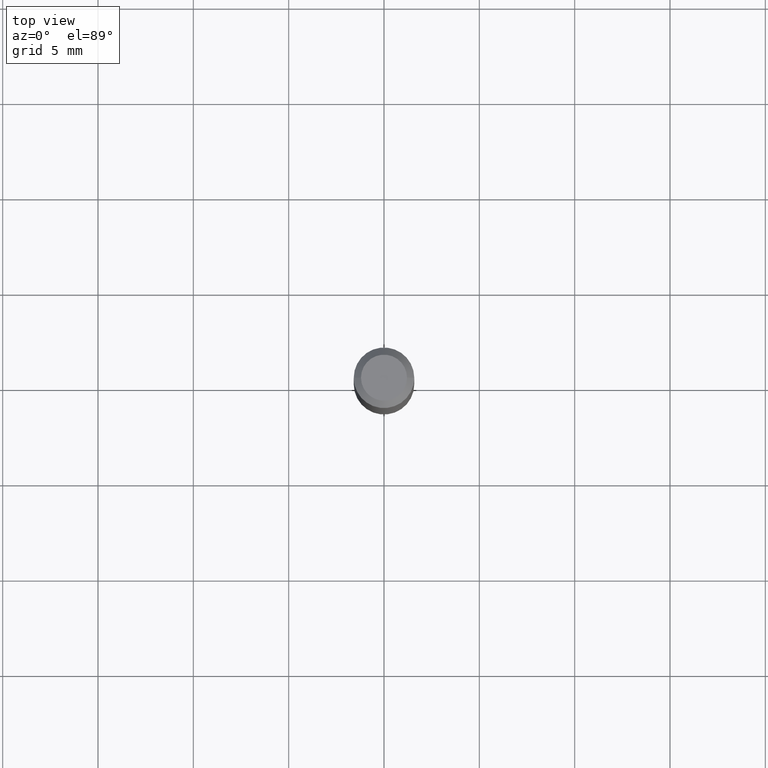
[diagram: clean part render]
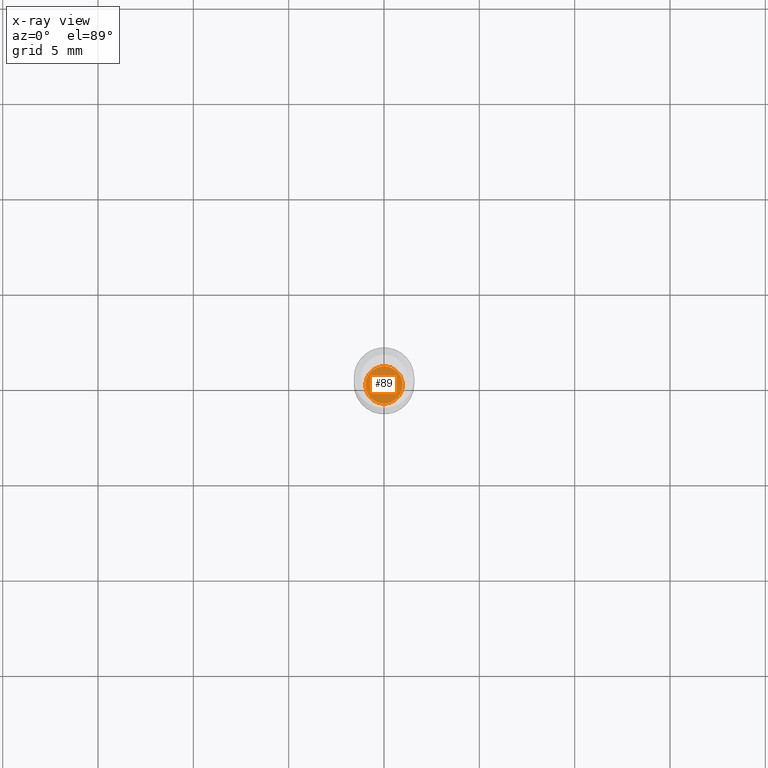
[diagram: x-ray — body ghosted, one internal face saturated and labeled with its STEP entity id]
A machine part, top view, then the same camera in x-ray: the body is ghosted and one INTERNAL B-rep face — a face not visible from any outside direction — is saturated and labeled: STEP entity #89.
In plain terms, the highlighted planar face has unit normal (-0, 0, 1).
Its self-contained STEP definition (entity closure, byte-faithful):
#14 = CIRCLE ( 'NONE', #351, 0.03849999999999999256 ) ;
#23 = CARTESIAN_POINT ( 'NONE',  ( 2.142230674218180125E-29, -3.058537652826596131E-15, -0.8760000000000001119 ) ) ;
#25 = VERTEX_POINT ( 'NONE', #405 ) ;
#59 = AXIS2_PLACEMENT_3D ( 'NONE', #23, #272, #338 ) ;
#80 = DIRECTION ( 'NONE',  ( -2.445468806185136597E-29, 3.491481338843145583E-15, 1.000000000000000000 ) ) ;
#89 = ADVANCED_FACE ( 'NONE', ( #197 ), #412, .F. ) ;
#98 = AXIS2_PLACEMENT_3D ( 'NONE', #215, #80, #395 ) ;
#113 = DIRECTION ( 'NONE',  ( -2.445468806185136597E-29, 3.491481338843145583E-15, 1.000000000000000000 ) ) ;
#174 = VERTEX_POINT ( 'NONE', #277 ) ;
#177 = EDGE_LOOP ( 'NONE', ( #311, #187 ) ) ;
#187 = ORIENTED_EDGE ( 'NONE', *, *, #321, .F. ) ;
#197 = FACE_OUTER_BOUND ( 'NONE', #177, .T. ) ;
#215 = CARTESIAN_POINT ( 'NONE',  ( 2.142230674218180125E-29, -3.058537652826596131E-15, -0.8760000000000001119 ) ) ;
#272 = DIRECTION ( 'NONE',  ( -2.438088387897960049E-29, 3.491481338843145188E-15, 1.000000000000000000 ) ) ;
#277 = CARTESIAN_POINT ( 'NONE',  ( -0.03849999999999999256, -2.782329472384846510E-15, -0.8760000000000001119 ) ) ;
#283 = EDGE_CURVE ( 'NONE', #25, #174, #301, .T. ) ;
#301 = CIRCLE ( 'NONE', #98, 0.03849999999999999256 ) ;
#311 = ORIENTED_EDGE ( 'NONE', *, *, #283, .F. ) ;
#319 = CARTESIAN_POINT ( 'NONE',  ( 2.142230674218180125E-29, -3.058537652826596131E-15, -0.8760000000000001119 ) ) ;
#321 = EDGE_CURVE ( 'NONE', #174, #25, #14, .T. ) ;
#338 = DIRECTION ( 'NONE',  ( 1.000000000000000000, -6.982962677686265922E-15, 4.876176775795935793E-29 ) ) ;
#351 = AXIS2_PLACEMENT_3D ( 'NONE', #319, #113, #360 ) ;
#360 = DIRECTION ( 'NONE',  ( 1.000000000000000000, -6.982962677686271444E-15, 0.000000000000000000 ) ) ;
#395 = DIRECTION ( 'NONE',  ( 1.000000000000000000, -6.982962677686271444E-15, 0.000000000000000000 ) ) ;
#405 = CARTESIAN_POINT ( 'NONE',  ( 0.03849999999999999256, -3.327381715917517542E-15, -0.8760000000000001119 ) ) ;
#412 = PLANE ( 'NONE',  #59 ) ;